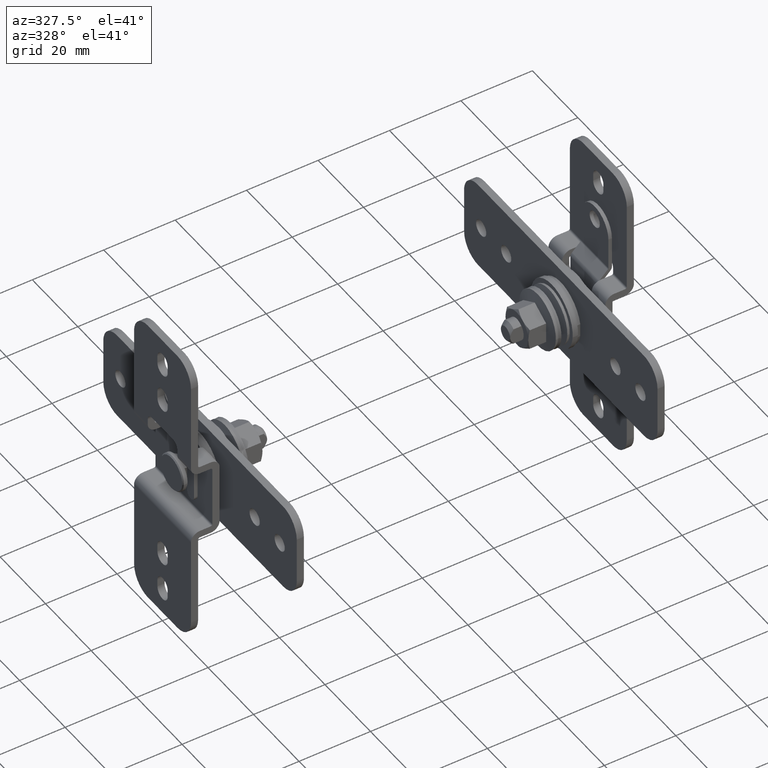
[diagram: clean part render]
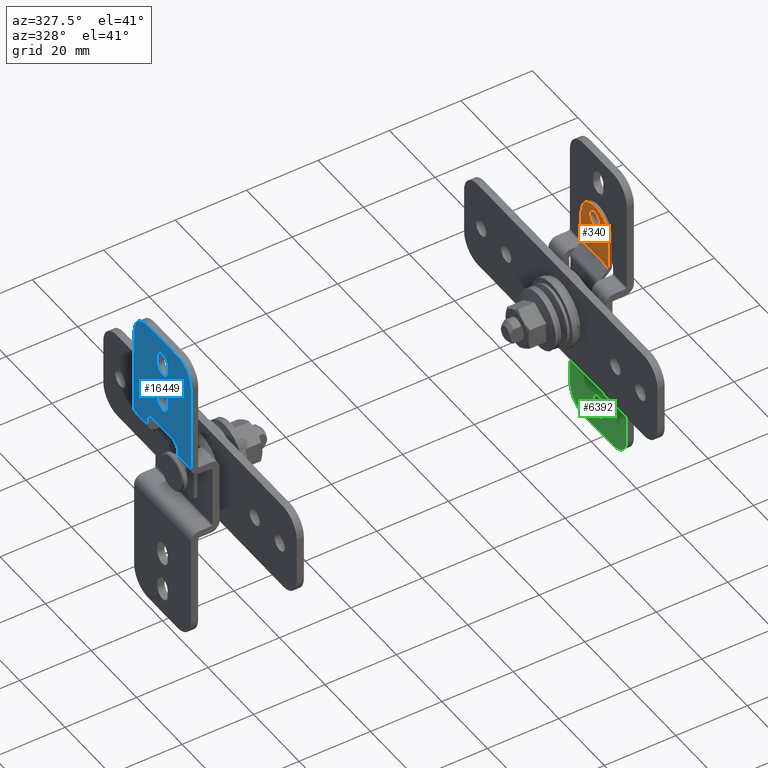
[diagram: same view with three faces highlighted in distinct colors, each labeled with its STEP entity id]
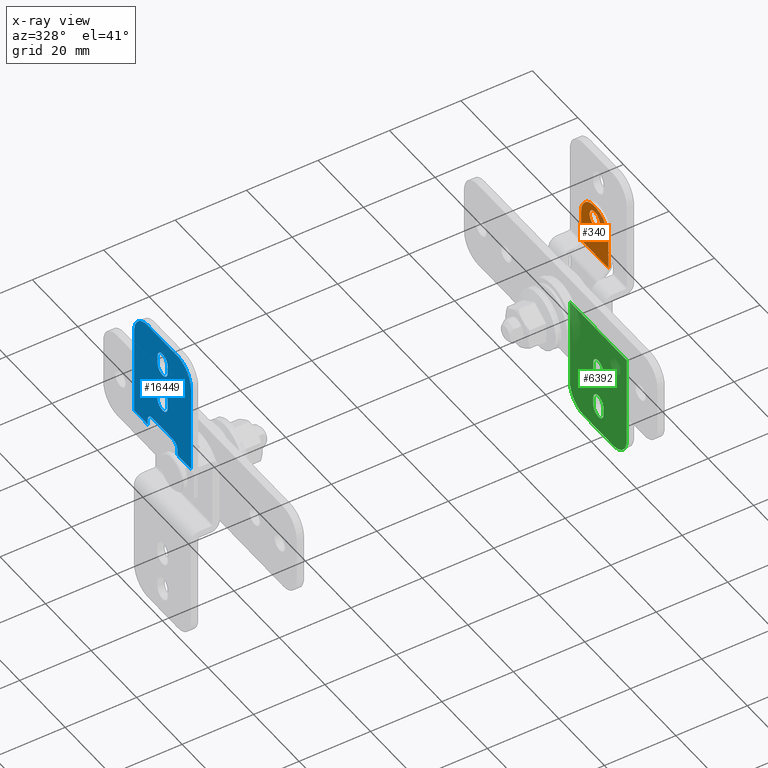
[diagram: x-ray of the same camera — body ghosted, the three highlighted faces saturated]
A machine part, auxiliary view with three faces highlighted in distinct colors.
The next image is the same camera in x-ray (body ghosted, the three faces saturated) — at least one of them is partly hidden behind the body in this view.
Their STEP definitions:

[orange] entity #340 — the highlighted face is a freeform B-spline surface patch.
#40=CARTESIAN_POINT('',(121.0,1.461258108743952,22.289086577200511));
#41=VERTEX_POINT('',#40);
#47=CARTESIAN_POINT('',(121.0,-2.250000000000000,23.999999999799702));
#48=VERTEX_POINT('',#47);
#49=CARTESIAN_POINT('',(121.0,-2.250000000000000,23.999999999799702));
#50=CARTESIAN_POINT('',(121.0,-2.250000000000000,21.749999999799694));
#51=CARTESIAN_POINT('',(121.0,0.0,21.749999999799702));
#52=CARTESIAN_POINT('',(121.000000000000030,0.830068823497885,21.749999999799698));
#53=CARTESIAN_POINT('',(120.999999999999940,1.461258108743949,22.289086577200518));
#61=(BOUNDED_CURVE()B_SPLINE_CURVE(2,(#49,#50,#51,#52,#53),.UNSPECIFIED.,.F.,.U.)B_SPLINE_CURVE_WITH_KNOTS((3,2,3),(0.500000000000000,0.750000000000000,0.863143161349466),.UNSPECIFIED.)CURVE()GEOMETRIC_REPRESENTATION_ITEM()RATIONAL_B_SPLINE_CURVE((1.0,0.707106781186547,1.0,0.867444541142501,0.854871031639133))REPRESENTATION_ITEM(''));
#62=EDGE_CURVE('',#48,#41,#61,.T.);
#64=CARTESIAN_POINT('',(121.0,-1.461258108743952,25.710913422398878));
#65=VERTEX_POINT('',#64);
#66=CARTESIAN_POINT('',(120.999999999999960,-1.461258108743954,25.710913422398878));
#67=CARTESIAN_POINT('',(120.999999999999990,-2.250000000000001,25.037264207260336));
#68=CARTESIAN_POINT('',(121.0,-2.250000000000000,23.999999999799702));
#76=(BOUNDED_CURVE()B_SPLINE_CURVE(2,(#66,#67,#68),.UNSPECIFIED.,.F.,.U.)B_SPLINE_CURVE_WITH_KNOTS((3,3),(0.363143161349466,0.500000000000000),.UNSPECIFIED.)CURVE()GEOMETRIC_REPRESENTATION_ITEM()RATIONAL_B_SPLINE_CURVE((0.854871031639133,0.839662240044047,1.0))REPRESENTATION_ITEM(''));
#77=EDGE_CURVE('',#65,#48,#76,.T.);
#153=CARTESIAN_POINT('',(121.0,2.250000000000000,23.999999999799702));
#154=VERTEX_POINT('',#153);
#155=CARTESIAN_POINT('',(121.0,2.250000000000000,23.999999999799702));
#156=CARTESIAN_POINT('',(121.0,2.250000000000000,26.249999999799705));
#157=CARTESIAN_POINT('',(121.0,0.0,26.249999999799702));
#158=CARTESIAN_POINT('',(120.999999999999990,-0.830068823497889,26.249999999799698));
#159=CARTESIAN_POINT('',(120.999999999999960,-1.461258108743954,25.710913422398878));
#167=(BOUNDED_CURVE()B_SPLINE_CURVE(2,(#155,#156,#157,#158,#159),.UNSPECIFIED.,.F.,.U.)B_SPLINE_CURVE_WITH_KNOTS((3,2,3),(0.0,0.250000000000000,0.363143161349466),.UNSPECIFIED.)CURVE()GEOMETRIC_REPRESENTATION_ITEM()RATIONAL_B_SPLINE_CURVE((1.0,0.707106781186547,1.0,0.867444541142500,0.854871031639133))REPRESENTATION_ITEM(''));
#168=EDGE_CURVE('',#154,#65,#167,.T.);
#170=CARTESIAN_POINT('',(120.999999999999940,1.461258108743949,22.289086577200518));
#171=CARTESIAN_POINT('',(121.000000000000040,2.250000000000000,22.962735792339068));
#172=CARTESIAN_POINT('',(121.0,2.250000000000000,23.999999999799702));
#180=(BOUNDED_CURVE()B_SPLINE_CURVE(2,(#170,#171,#172),.UNSPECIFIED.,.F.,.U.)B_SPLINE_CURVE_WITH_KNOTS((3,3),(0.863143161349466,1.0),.UNSPECIFIED.)CURVE()GEOMETRIC_REPRESENTATION_ITEM()RATIONAL_B_SPLINE_CURVE((0.854871031639133,0.839662240044047,1.0))REPRESENTATION_ITEM(''));
#181=EDGE_CURVE('',#41,#154,#180,.T.);
#282=CARTESIAN_POINT('',(121.0,6.599399976741672,28.743190019800640));
#283=CARTESIAN_POINT('',(121.0,6.599399976741672,12.378129924281881));
#284=CARTESIAN_POINT('',(121.0,-6.599400298606753,28.743190019800640));
#285=CARTESIAN_POINT('',(121.0,-6.599400298606753,12.378129924281881));
#286=B_SPLINE_SURFACE_WITH_KNOTS('',1,1,((#282,#284),(#283,#285)),.UNSPECIFIED.,.F.,.F.,.U.,(2,2),(2,2),(0.0,16.365060095518750),(0.0,13.198800275348431),.UNSPECIFIED.);
#287=CARTESIAN_POINT('',(121.0,-6.0,13.121320343360519));
#288=VERTEX_POINT('',#287);
#289=CARTESIAN_POINT('',(121.0,-6.0,21.999999999799702));
#290=VERTEX_POINT('',#289);
#291=CARTESIAN_POINT('',(121.0,-6.0,13.121320343360519));
#292=CARTESIAN_POINT('',(121.0,-6.0,21.999999999799702));
#293=QUASI_UNIFORM_CURVE('',1,(#291,#292),.UNSPECIFIED.,.F.,.U.);
#294=EDGE_CURVE('',#288,#290,#293,.T.);
#295=ORIENTED_EDGE('',*,*,#294,.T.);
#296=CARTESIAN_POINT('',(121.0,6.0,21.999999999799702));
#297=VERTEX_POINT('',#296);
#298=CARTESIAN_POINT('',(121.0,6.0,21.999999999799702));
#299=CARTESIAN_POINT('',(120.999999999999700,6.000049528165503,22.417218677092890));
#300=CARTESIAN_POINT('',(121.000000000000600,5.907516422989755,23.300773795668459));
#301=CARTESIAN_POINT('',(120.999999999999300,5.457595883924198,24.635505229695660));
#302=CARTESIAN_POINT('',(121.000000000001410,4.695589807879560,25.822680205854141));
#303=CARTESIAN_POINT('',(120.999999999997900,3.824846189432672,26.661743418836100));
#304=CARTESIAN_POINT('',(121.000000000001710,2.989664255869351,27.227199704446679));
#305=CARTESIAN_POINT('',(121.000000000001290,2.190713518322827,27.611105512790921));
#306=CARTESIAN_POINT('',(120.999999999997100,1.248666614170295,27.896871432335718));
#307=CARTESIAN_POINT('',(121.000000000003690,0.319828649447236,28.017217886126190));
#308=CARTESIAN_POINT('',(120.999999999997400,-0.737431978974568,27.984745673106829));
#309=CARTESIAN_POINT('',(121.000000000007500,-1.970323063909120,27.731873897103011));
#310=CARTESIAN_POINT('',(120.999999999984990,-3.154496374378397,27.162865872130329));
#311=CARTESIAN_POINT('',(121.000000000009810,-4.042983931696615,26.460384617534810));
#312=CARTESIAN_POINT('',(120.999999999996010,-4.738236048187082,25.730250005705859));
#313=CARTESIAN_POINT('',(121.000000000003790,-5.396839392012319,24.744749582995460));
#314=CARTESIAN_POINT('',(120.999999999992890,-5.887902127775767,23.423491166338351));
#315=CARTESIAN_POINT('',(121.000000000007200,-6.000076114947717,22.466322381599710));
#316=CARTESIAN_POINT('',(121.0,-6.0,21.999999999799702));
#317=B_SPLINE_CURVE_WITH_KNOTS('',3,(#298,#299,#300,#301,#302,#303,#304,#305,#306,#307,#308,#309,#310,#311,#312,#313,#314,#315,#316),.UNSPECIFIED.,.F.,.U.,(4,1,1,1,1,1,1,1,1,1,1,1,1,1,1,1,4),(0.000000353973387,1.251663416025039,2.650701336533270,4.196995058465722,5.448754008361131,6.258692607412479,7.215912720826131,8.099535299464598,9.204010754052757,10.013887354401930,11.265607409470510,12.959125900679160,13.916360006404810,14.652684728721541,15.978060201071790,17.450711285317649,18.849674194611001),.UNSPECIFIED.);
#318=EDGE_CURVE('',#297,#290,#317,.T.);
#319=ORIENTED_EDGE('',*,*,#318,.F.);
#320=CARTESIAN_POINT('',(121.0,6.0,13.121320343360519));
#321=VERTEX_POINT('',#320);
#322=CARTESIAN_POINT('',(121.0,6.0,13.121320343360519));
#323=CARTESIAN_POINT('',(121.0,6.0,21.999999999799702));
#324=QUASI_UNIFORM_CURVE('',1,(#322,#323),.UNSPECIFIED.,.F.,.U.);
#325=EDGE_CURVE('',#321,#297,#324,.T.);
#326=ORIENTED_EDGE('',*,*,#325,.F.);
#327=CARTESIAN_POINT('',(121.0,-6.0,13.121320343360519));
#328=CARTESIAN_POINT('',(121.0,6.0,13.121320343360519));
#329=QUASI_UNIFORM_CURVE('',1,(#327,#328),.UNSPECIFIED.,.F.,.U.);
#330=EDGE_CURVE('',#288,#321,#329,.T.);
#331=ORIENTED_EDGE('',*,*,#330,.F.);
#332=EDGE_LOOP('',(#295,#319,#326,#331));
#333=FACE_OUTER_BOUND('',#332,.T.);
#334=ORIENTED_EDGE('',*,*,#168,.T.);
#335=ORIENTED_EDGE('',*,*,#77,.T.);
#336=ORIENTED_EDGE('',*,*,#62,.T.);
#337=ORIENTED_EDGE('',*,*,#181,.T.);
#338=EDGE_LOOP('',(#334,#335,#336,#337));
#339=FACE_BOUND('',#338,.T.);
#340=ADVANCED_FACE('',(#333,#339),#286,.T.);

[blue] entity #16449 — the highlighted face is a freeform B-spline surface patch.
#15083=CARTESIAN_POINT('',(0.0,-6.499999999999890,11.500000000000000));
#15084=VERTEX_POINT('',#15083);
#15098=CARTESIAN_POINT('',(0.0,-6.499999999999890,13.000000000032120));
#15099=VERTEX_POINT('',#15098);
#15100=CARTESIAN_POINT('',(0.0,-6.499999999999890,11.500000000000000));
#15101=CARTESIAN_POINT('',(0.0,-6.499999999999890,13.000000000032120));
#15102=QUASI_UNIFORM_CURVE('',1,(#15100,#15101),.UNSPECIFIED.,.F.,.U.);
#15103=EDGE_CURVE('',#15084,#15099,#15102,.T.);
#15441=CARTESIAN_POINT('',(0.0,6.500000000000000,11.500000000000000));
#15442=VERTEX_POINT('',#15441);
#15491=CARTESIAN_POINT('',(0.0,6.500000000000000,13.000000000032120));
#15492=VERTEX_POINT('',#15491);
#15498=CARTESIAN_POINT('',(0.0,6.500000000000000,13.000000000032120));
#15499=CARTESIAN_POINT('',(0.0,6.500000000000000,11.500000000000000));
#15500=QUASI_UNIFORM_CURVE('',1,(#15498,#15499),.UNSPECIFIED.,.F.,.U.);
#15501=EDGE_CURVE('',#15492,#15442,#15500,.T.);
#15521=CARTESIAN_POINT('',(0.0,4.500000000000000,15.000000000032101));
#15522=VERTEX_POINT('',#15521);
#15528=CARTESIAN_POINT('',(0.0,4.500000000000000,15.000000000032120));
#15529=CARTESIAN_POINT('',(0.0,6.500000000000001,15.000000000032125));
#15530=CARTESIAN_POINT('',(0.0,6.500000000000000,13.000000000032120));
#15538=(BOUNDED_CURVE()B_SPLINE_CURVE(2,(#15528,#15529,#15530),.UNSPECIFIED.,.F.,.U.)CURVE()GEOMETRIC_REPRESENTATION_ITEM()QUASI_UNIFORM_CURVE()RATIONAL_B_SPLINE_CURVE((1.0,0.707106781186548,1.0))REPRESENTATION_ITEM(''));
#15539=EDGE_CURVE('',#15522,#15492,#15538,.T.);
#15551=CARTESIAN_POINT('',(0.0,-4.500000000000000,15.000000000032101));
#15552=VERTEX_POINT('',#15551);
#15558=CARTESIAN_POINT('',(0.0,-4.500000000000000,15.000000000032101));
#15559=CARTESIAN_POINT('',(0.0,4.500000000000000,15.000000000032101));
#15560=QUASI_UNIFORM_CURVE('',1,(#15558,#15559),.UNSPECIFIED.,.F.,.U.);
#15561=EDGE_CURVE('',#15552,#15522,#15560,.T.);
#15583=CARTESIAN_POINT('',(0.0,-6.499999999999890,13.000000000032120));
#15584=CARTESIAN_POINT('',(0.0,-6.500000000000001,15.000000000032125));
#15585=CARTESIAN_POINT('',(0.0,-4.500000000000000,15.000000000032120));
#15593=(BOUNDED_CURVE()B_SPLINE_CURVE(2,(#15583,#15584,#15585),.UNSPECIFIED.,.F.,.U.)CURVE()GEOMETRIC_REPRESENTATION_ITEM()QUASI_UNIFORM_CURVE()RATIONAL_B_SPLINE_CURVE((1.0,0.707106781186548,1.0))REPRESENTATION_ITEM(''));
#15594=EDGE_CURVE('',#15099,#15552,#15593,.T.);
#15618=CARTESIAN_POINT('',(0.0,2.250000000000225,34.000000000032152));
#15619=VERTEX_POINT('',#15618);
#15620=CARTESIAN_POINT('',(0.0,-2.249999999999775,34.000000000032152));
#15621=VERTEX_POINT('',#15620);
#15622=CARTESIAN_POINT('',(0.0,2.250000000000225,34.000000000032152));
#15623=CARTESIAN_POINT('',(0.0,2.250201249172595,33.742277950027727));
#15624=CARTESIAN_POINT('',(0.0,2.179615655347027,33.337453540378917));
#15625=CARTESIAN_POINT('',(0.0,1.934426452379791,32.819122825959283));
#15626=CARTESIAN_POINT('',(0.0,1.598076272370151,32.376821135842313));
#15627=CARTESIAN_POINT('',(0.0,1.063951608931053,31.970341788128231));
#15628=CARTESIAN_POINT('',(0.0,0.443138232939638,31.765360209855992));
#15629=CARTESIAN_POINT('',(0.0,-0.222001303106669,31.732634781830338));
#15630=CARTESIAN_POINT('',(0.0,-0.823435210446035,31.867687119299141));
#15631=CARTESIAN_POINT('',(0.0,-1.353024891780116,32.176507051900408));
#15632=CARTESIAN_POINT('',(0.0,-1.714716221483909,32.520897165416343));
#15633=CARTESIAN_POINT('',(0.0,-1.959671585158883,32.868733162939229));
#15634=CARTESIAN_POINT('',(0.0,-2.182818737071409,33.355859384735162));
#15635=CARTESIAN_POINT('',(0.0,-2.250205188413072,33.742272222281677));
#15636=CARTESIAN_POINT('',(0.0,-2.249999999999775,34.000000000032152));
#15637=B_SPLINE_CURVE_WITH_KNOTS('',3,(#15622,#15623,#15624,#15625,#15626,#15627,#15628,#15629,#15630,#15631,#15632,#15633,#15634,#15635,#15636),.UNSPECIFIED.,.F.,.U.,(4,1,1,1,1,1,1,1,1,1,1,1,4),(0.000000196257509,0.773093832299082,1.214926874622381,1.711966043698562,2.429920861294480,3.203102362542697,3.644792945760273,4.417969645474660,5.025449052653993,5.467256219438712,5.909071856491536,6.295655813486937,7.068760850378442),.UNSPECIFIED.);
#15638=EDGE_CURVE('',#15619,#15621,#15637,.T.);
#15659=CARTESIAN_POINT('',(0.0,-2.249999999999775,36.000000000032102));
#15660=VERTEX_POINT('',#15659);
#15661=CARTESIAN_POINT('',(0.0,-2.249999999999775,36.000000000032102));
#15662=CARTESIAN_POINT('',(0.0,-2.249999999999775,34.000000000032152));
#15663=QUASI_UNIFORM_CURVE('',1,(#15661,#15662),.UNSPECIFIED.,.F.,.U.);
#15664=EDGE_CURVE('',#15660,#15621,#15663,.T.);
#15694=CARTESIAN_POINT('',(0.0,2.250000000000230,36.000000000032102));
#15695=VERTEX_POINT('',#15694);
#15696=CARTESIAN_POINT('',(0.0,-2.249999999999775,36.000000000032102));
#15697=CARTESIAN_POINT('',(0.0,-2.250105537889713,36.220907910101623));
#15698=CARTESIAN_POINT('',(0.0,-2.195318656615053,36.588982819294174));
#15699=CARTESIAN_POINT('',(0.0,-1.990038234469867,37.084552996134008));
#15700=CARTESIAN_POINT('',(0.0,-1.675800648156294,37.542791896722981));
#15701=CARTESIAN_POINT('',(0.0,-1.190782846251970,37.950960064872781));
#15702=CARTESIAN_POINT('',(0.0,-0.623402447596219,38.185821098380337));
#15703=CARTESIAN_POINT('',(0.0,-0.001306743615624,38.278172591125369));
#15704=CARTESIAN_POINT('',(0.0,0.554820794107030,38.209651146353430));
#15705=CARTESIAN_POINT('',(0.0,1.050361562170682,38.004169714939501));
#15706=CARTESIAN_POINT('',(0.0,1.406576266816379,37.772458063083512));
#15707=CARTESIAN_POINT('',(0.0,1.754953749197645,37.440874891945711));
#15708=CARTESIAN_POINT('',(0.0,2.028439355537607,37.020440772725202));
#15709=CARTESIAN_POINT('',(0.0,2.209110016015536,36.515373582413133));
#15710=CARTESIAN_POINT('',(0.0,2.250042559274612,36.184064613281961));
#15711=CARTESIAN_POINT('',(0.0,2.250000000000230,36.000000000032102));
#15712=B_SPLINE_CURVE_WITH_KNOTS('',3,(#15696,#15697,#15698,#15699,#15700,#15701,#15702,#15703,#15704,#15705,#15706,#15707,#15708,#15709,#15710,#15711),.UNSPECIFIED.,.F.,.U.,(4,1,1,1,1,1,1,1,1,1,1,1,1,4),(0.000000196250113,0.662697180073150,1.104458431367720,1.601516846082784,2.319470932891838,2.982171445035571,3.423961384253977,4.197024913644366,4.638842249682501,5.025449052653081,5.467256219438284,6.074745185794611,6.516561075902753,7.068760850378440),.UNSPECIFIED.);
#15713=EDGE_CURVE('',#15660,#15695,#15712,.T.);
#15730=CARTESIAN_POINT('',(0.0,2.250000000000225,34.000000000032152));
#15731=CARTESIAN_POINT('',(0.0,2.250000000000230,36.000000000032102));
#15732=QUASI_UNIFORM_CURVE('',1,(#15730,#15731),.UNSPECIFIED.,.F.,.U.);
#15733=EDGE_CURVE('',#15619,#15695,#15732,.T.);
#15746=CARTESIAN_POINT('',(0.0,2.250000000000195,25.000000000032099));
#15747=VERTEX_POINT('',#15746);
#15748=CARTESIAN_POINT('',(0.0,2.250000000000230,23.000000000032099));
#15749=VERTEX_POINT('',#15748);
#15750=CARTESIAN_POINT('',(0.0,2.250000000000195,25.000000000032099));
#15751=CARTESIAN_POINT('',(0.0,2.250000000000230,23.000000000032099));
#15752=QUASI_UNIFORM_CURVE('',1,(#15750,#15751),.UNSPECIFIED.,.F.,.U.);
#15753=EDGE_CURVE('',#15747,#15749,#15752,.T.);
#15787=CARTESIAN_POINT('',(0.0,-2.249999999999775,25.000000000032099));
#15788=VERTEX_POINT('',#15787);
#15789=CARTESIAN_POINT('',(0.0,-2.249999999999775,25.000000000032099));
#15790=CARTESIAN_POINT('',(0.0,-2.250090358009942,25.220904547555708));
#15791=CARTESIAN_POINT('',(0.0,-2.195332552790886,25.588986163018131));
#15792=CARTESIAN_POINT('',(0.0,-1.990038824007398,26.084553812634230));
#15793=CARTESIAN_POINT('',(0.0,-1.675794153791204,26.542796665879369));
#15794=CARTESIAN_POINT('',(0.0,-1.190780545944908,26.950936907625831));
#15795=CARTESIAN_POINT('',(0.0,-0.623409244519880,27.185845510645962));
#15796=CARTESIAN_POINT('',(0.0,-0.001314452971668,27.278173871080739));
#15797=CARTESIAN_POINT('',(0.0,0.629019409180237,27.200504600211620));
#15798=CARTESIAN_POINT('',(0.0,1.217715878598963,26.921891202095789));
#15799=CARTESIAN_POINT('',(0.0,1.699629387870685,26.516483040652538));
#15800=CARTESIAN_POINT('',(0.0,2.016033492316923,26.055316487939638));
#15801=CARTESIAN_POINT('',(0.0,2.209101063139215,25.515367079967849));
#15802=CARTESIAN_POINT('',(0.0,2.250041801286577,25.184063958519442));
#15803=CARTESIAN_POINT('',(0.0,2.250000000000195,25.000000000032099));
#15804=B_SPLINE_CURVE_WITH_KNOTS('',3,(#15789,#15790,#15791,#15792,#15793,#15794,#15795,#15796,#15797,#15798,#15799,#15800,#15801,#15802,#15803),.UNSPECIFIED.,.F.,.U.,(4,1,1,1,1,1,1,1,1,1,1,1,4),(0.000000196248396,0.662697180071523,1.104458431366226,1.601516846081355,2.319470932890483,2.982171445034456,3.423961384253028,4.197024913643686,4.859749523920302,5.356798497877365,6.074745185793978,6.516561075902452,7.068760850378428),.UNSPECIFIED.);
#15805=EDGE_CURVE('',#15788,#15747,#15804,.T.);
#15822=CARTESIAN_POINT('',(0.0,-2.249999999999775,23.000000000032099));
#15823=VERTEX_POINT('',#15822);
#15824=CARTESIAN_POINT('',(0.0,-2.249999999999775,23.000000000032099));
#15825=CARTESIAN_POINT('',(0.0,-2.249999999999775,25.000000000032099));
#15826=QUASI_UNIFORM_CURVE('',1,(#15824,#15825),.UNSPECIFIED.,.F.,.U.);
#15827=EDGE_CURVE('',#15823,#15788,#15826,.T.);
#15857=CARTESIAN_POINT('',(0.0,2.250000000000230,23.000000000032099));
#15858=CARTESIAN_POINT('',(0.0,2.250101041527036,22.779094277584850));
#15859=CARTESIAN_POINT('',(0.0,2.195317729406958,22.411019243685448));
#15860=CARTESIAN_POINT('',(0.0,1.968864914708495,21.864126895831870));
#15861=CARTESIAN_POINT('',(0.0,1.658503807800172,21.445655697219738));
#15862=CARTESIAN_POINT('',(0.0,1.258067118022618,21.117124463187238));
#15863=CARTESIAN_POINT('',(0.0,0.833934586949119,20.890384525154889));
#15864=CARTESIAN_POINT('',(0.0,0.369203224075723,20.761824325704829));
#15865=CARTESIAN_POINT('',(0.0,-0.221997046754540,20.732626358481070));
#15866=CARTESIAN_POINT('',(0.0,-0.823434729302370,20.867681462168861));
#15867=CARTESIAN_POINT('',(0.0,-1.353019479976750,21.176510140822941));
#15868=CARTESIAN_POINT('',(0.0,-1.754941069743889,21.559140593014341));
#15869=CARTESIAN_POINT('',(0.0,-2.028445200394925,21.979552837446249));
#15870=CARTESIAN_POINT('',(0.0,-2.209103275995028,22.484630182019529));
#15871=CARTESIAN_POINT('',(0.0,-2.250048560262410,22.815933184092270));
#15872=CARTESIAN_POINT('',(0.0,-2.249999999999775,23.000000000032099));
#15873=B_SPLINE_CURVE_WITH_KNOTS('',3,(#15857,#15858,#15859,#15860,#15861,#15862,#15863,#15864,#15865,#15866,#15867,#15868,#15869,#15870,#15871,#15872),.UNSPECIFIED.,.F.,.U.,(4,1,1,1,1,1,1,1,1,1,1,1,1,4),(0.000000196255243,0.662697180077455,1.104458431371659,1.767194375466827,2.208997066072138,2.650833015942851,3.203102362542397,3.644792945760012,4.417969645474452,5.025449052653657,5.467256219438315,6.074745185794265,6.516561075902505,7.068760850378439),.UNSPECIFIED.);
#15874=EDGE_CURVE('',#15749,#15823,#15873,.T.);
#15897=CARTESIAN_POINT('',(0.0,-6.499999999999730,42.500000000000000));
#15898=VERTEX_POINT('',#15897);
#15904=CARTESIAN_POINT('',(0.0,-12.499999999999760,36.500000000000000));
#15905=VERTEX_POINT('',#15904);
#15906=CARTESIAN_POINT('',(0.0,-12.499999999999771,36.500000000000000));
#15907=CARTESIAN_POINT('',(0.0,-12.499999999999771,42.500000000000000));
#15908=CARTESIAN_POINT('',(0.0,-6.499999999999770,42.499999999999993));
#15916=(BOUNDED_CURVE()B_SPLINE_CURVE(2,(#15906,#15907,#15908),.UNSPECIFIED.,.F.,.U.)CURVE()GEOMETRIC_REPRESENTATION_ITEM()QUASI_UNIFORM_CURVE()RATIONAL_B_SPLINE_CURVE((1.0,0.707106781186548,1.0))REPRESENTATION_ITEM(''));
#15917=EDGE_CURVE('',#15905,#15898,#15916,.T.);
#15942=CARTESIAN_POINT('',(0.0,12.499999999999760,36.500000000000000));
#15943=VERTEX_POINT('',#15942);
#15949=CARTESIAN_POINT('',(0.0,6.499999999999730,42.500000000000000));
#15950=VERTEX_POINT('',#15949);
#15951=CARTESIAN_POINT('',(0.0,6.499999999999730,42.499999999999993));
#15952=CARTESIAN_POINT('',(0.0,12.499999999999728,42.500000000000000));
#15953=CARTESIAN_POINT('',(0.0,12.499999999999730,36.500000000000000));
#15961=(BOUNDED_CURVE()B_SPLINE_CURVE(2,(#15951,#15952,#15953),.UNSPECIFIED.,.F.,.U.)CURVE()GEOMETRIC_REPRESENTATION_ITEM()QUASI_UNIFORM_CURVE()RATIONAL_B_SPLINE_CURVE((1.0,0.707106781186548,1.0))REPRESENTATION_ITEM(''));
#15962=EDGE_CURVE('',#15950,#15943,#15961,.T.);
#16039=CARTESIAN_POINT('',(0.0,-12.499999999999719,11.500000000000000));
#16040=VERTEX_POINT('',#16039);
#16041=CARTESIAN_POINT('',(0.0,-12.499999999999760,36.500000000000000));
#16042=CARTESIAN_POINT('',(0.0,-12.499999999999719,11.500000000000000));
#16043=QUASI_UNIFORM_CURVE('',1,(#16041,#16042),.UNSPECIFIED.,.F.,.U.);
#16044=EDGE_CURVE('',#15905,#16040,#16043,.T.);
#16202=CARTESIAN_POINT('',(0.0,12.499999999999719,11.500000000000000));
#16203=VERTEX_POINT('',#16202);
#16217=CARTESIAN_POINT('',(0.0,12.499999999999760,36.500000000000000));
#16218=CARTESIAN_POINT('',(0.0,12.499999999999719,11.500000000000000));
#16219=QUASI_UNIFORM_CURVE('',1,(#16217,#16218),.UNSPECIFIED.,.F.,.U.);
#16220=EDGE_CURVE('',#15943,#16203,#16219,.T.);
#16390=CARTESIAN_POINT('',(0.0,-6.499999999999890,11.500000000000000));
#16391=CARTESIAN_POINT('',(0.0,-12.499999999999719,11.500000000000000));
#16392=QUASI_UNIFORM_CURVE('',1,(#16390,#16391),.UNSPECIFIED.,.F.,.U.);
#16393=EDGE_CURVE('',#15084,#16040,#16392,.T.);
#16405=CARTESIAN_POINT('',(0.0,6.499999999999730,42.500000000000000));
#16406=CARTESIAN_POINT('',(0.0,-6.499999999999730,42.500000000000000));
#16407=QUASI_UNIFORM_CURVE('',1,(#16405,#16406),.UNSPECIFIED.,.F.,.U.);
#16408=EDGE_CURVE('',#15950,#15898,#16407,.T.);
#16414=CARTESIAN_POINT('',(0.0,-13.748749951544889,9.951550060084010));
#16415=CARTESIAN_POINT('',(0.0,-13.748749951544889,44.048450771400773));
#16416=CARTESIAN_POINT('',(0.0,13.748750622097139,9.951550060084010));
#16417=CARTESIAN_POINT('',(0.0,13.748750622097139,44.048450771400773));
#16418=B_SPLINE_SURFACE_WITH_KNOTS('',1,1,((#16414,#16416),(#16415,#16417)),.UNSPECIFIED.,.F.,.F.,.U.,(2,2),(2,2),(0.0,34.096900711316763),(0.0,27.497500573642021),.UNSPECIFIED.);
#16419=ORIENTED_EDGE('',*,*,#15501,.F.);
#16420=ORIENTED_EDGE('',*,*,#15539,.F.);
#16421=ORIENTED_EDGE('',*,*,#15561,.F.);
#16422=ORIENTED_EDGE('',*,*,#15594,.F.);
#16423=ORIENTED_EDGE('',*,*,#15103,.F.);
#16424=ORIENTED_EDGE('',*,*,#16393,.T.);
#16425=ORIENTED_EDGE('',*,*,#16044,.F.);
#16426=ORIENTED_EDGE('',*,*,#15917,.T.);
#16427=ORIENTED_EDGE('',*,*,#16408,.F.);
#16428=ORIENTED_EDGE('',*,*,#15962,.T.);
#16429=ORIENTED_EDGE('',*,*,#16220,.T.);
#16430=CARTESIAN_POINT('',(0.0,12.499999999999719,11.500000000000000));
#16431=CARTESIAN_POINT('',(0.0,6.500000000000000,11.500000000000000));
#16432=QUASI_UNIFORM_CURVE('',1,(#16430,#16431),.UNSPECIFIED.,.F.,.U.);
#16433=EDGE_CURVE('',#16203,#15442,#16432,.T.);
#16434=ORIENTED_EDGE('',*,*,#16433,.T.);
#16435=EDGE_LOOP('',(#16419,#16420,#16421,#16422,#16423,#16424,#16425,#16426,#16427,#16428,#16429,#16434));
#16436=FACE_OUTER_BOUND('',#16435,.T.);
#16437=ORIENTED_EDGE('',*,*,#15874,.F.);
#16438=ORIENTED_EDGE('',*,*,#15753,.F.);
#16439=ORIENTED_EDGE('',*,*,#15805,.F.);
#16440=ORIENTED_EDGE('',*,*,#15827,.F.);
#16441=EDGE_LOOP('',(#16437,#16438,#16439,#16440));
#16442=FACE_BOUND('',#16441,.T.);
#16443=ORIENTED_EDGE('',*,*,#15638,.F.);
#16444=ORIENTED_EDGE('',*,*,#15733,.T.);
#16445=ORIENTED_EDGE('',*,*,#15713,.F.);
#16446=ORIENTED_EDGE('',*,*,#15664,.T.);
#16447=EDGE_LOOP('',(#16443,#16444,#16445,#16446));
#16448=FACE_BOUND('',#16447,.T.);
#16449=ADVANCED_FACE('',(#16436,#16442,#16448),#16418,.T.);

[green] entity #6392 — the highlighted face is a freeform B-spline surface patch.
#5526=CARTESIAN_POINT('',(122.0,2.250000000000230,-24.999999999967901));
#5527=VERTEX_POINT('',#5526);
#5533=CARTESIAN_POINT('',(122.0,-2.249999999999775,-24.999999999967901));
#5534=VERTEX_POINT('',#5533);
#5535=CARTESIAN_POINT('',(122.0,2.250000000000230,-24.999999999967901));
#5536=CARTESIAN_POINT('',(122.0,2.250040508241875,-25.184059196476291));
#5537=CARTESIAN_POINT('',(121.999999999999900,2.209110878711709,-25.515377053799892));
#5538=CARTESIAN_POINT('',(122.000000000000100,2.028444950477849,-26.020449530194441));
#5539=CARTESIAN_POINT('',(121.999999999999900,1.744789128710179,-26.456431425340298));
#5540=CARTESIAN_POINT('',(122.000000000000200,1.283475350529244,-26.885157550964351));
#5541=CARTESIAN_POINT('',(122.000000000000400,0.732857141091054,-27.162219425022489));
#5542=CARTESIAN_POINT('',(121.999999999999200,0.038408766484068,-27.282776259577449));
#5543=CARTESIAN_POINT('',(122.000000000002000,-0.629010434216257,-27.200481832917230));
#5544=CARTESIAN_POINT('',(121.999999999997200,-1.251392967439055,-26.906006931403191));
#5545=CARTESIAN_POINT('',(122.000000000000900,-1.752420317336686,-26.463004545172002));
#5546=CARTESIAN_POINT('',(121.999999999999300,-2.143695756658120,-25.828174323095450));
#5547=CARTESIAN_POINT('',(122.000000000000300,-2.250282888466114,-25.294532964353330));
#5548=CARTESIAN_POINT('',(122.0,-2.249999999999775,-24.999999999967901));
#5549=B_SPLINE_CURVE_WITH_KNOTS('',3,(#5535,#5536,#5537,#5538,#5539,#5540,#5541,#5542,#5543,#5544,#5545,#5546,#5547,#5548),.UNSPECIFIED.,.F.,.U.,(4,1,1,1,1,1,1,1,1,1,1,4),(0.000000196250488,0.552187582096847,0.994035504974757,1.601516846082776,2.098559095873056,2.871706931909267,3.423961384253810,4.197024913644165,4.859749523920543,5.467256219437751,6.185215054327749,7.068760850378434),.UNSPECIFIED.);
#5550=EDGE_CURVE('',#5527,#5534,#5549,.T.);
#5573=CARTESIAN_POINT('',(122.0,-2.249999999999775,-22.999999999967901));
#5574=VERTEX_POINT('',#5573);
#5575=CARTESIAN_POINT('',(122.0,-2.249999999999775,-22.999999999967901));
#5576=CARTESIAN_POINT('',(122.0,-2.249999999999775,-24.999999999967901));
#5577=QUASI_UNIFORM_CURVE('',1,(#5575,#5576),.UNSPECIFIED.,.F.,.U.);
#5578=EDGE_CURVE('',#5574,#5534,#5577,.T.);
#5627=CARTESIAN_POINT('',(122.0,2.250000000000230,-22.999999999967901));
#5628=VERTEX_POINT('',#5627);
#5629=CARTESIAN_POINT('',(122.0,-2.249999999999775,-22.999999999967901));
#5630=CARTESIAN_POINT('',(121.999999999999800,-2.250088340124372,-22.779099718018159));
#5631=CARTESIAN_POINT('',(122.000000000000600,-2.181713540839705,-22.318943825175140));
#5632=CARTESIAN_POINT('',(121.999999999999500,-1.903786230643585,-21.749288274980341));
#5633=CARTESIAN_POINT('',(122.000000000000400,-1.535586432871804,-21.333129830180550));
#5634=CARTESIAN_POINT('',(121.999999999999900,-1.134462767939405,-21.035620553830970));
#5635=CARTESIAN_POINT('',(122.000000000000100,-0.591919597494425,-20.794976148274110));
#5636=CARTESIAN_POINT('',(121.999999999999600,0.001300885131933,-20.721785600552341));
#5637=CARTESIAN_POINT('',(122.000000000001610,0.660054347700622,-20.819570930574312));
#5638=CARTESIAN_POINT('',(121.999999999996800,1.155275769727091,-21.038988379833320));
#5639=CARTESIAN_POINT('',(122.000000000002100,1.573532822273207,-21.373968943713301));
#5640=CARTESIAN_POINT('',(121.999999999999400,1.863513004597365,-21.710094250725611));
#5641=CARTESIAN_POINT('',(121.999999999997900,2.158325283042089,-22.245506722933161));
#5642=CARTESIAN_POINT('',(122.000000000004410,2.250291615421828,-22.705437667552079));
#5643=CARTESIAN_POINT('',(122.0,2.250000000000230,-22.999999999967901));
#5644=B_SPLINE_CURVE_WITH_KNOTS('',3,(#5629,#5630,#5631,#5632,#5633,#5634,#5635,#5636,#5637,#5638,#5639,#5640,#5641,#5642,#5643),.UNSPECIFIED.,.F.,.U.,(4,1,1,1,1,1,1,1,1,1,1,1,4),(0.000000196249728,0.662697180072599,1.380600253156628,1.877644395309764,2.319470932891060,2.871706931908813,3.644792945757435,4.086618096975423,4.859749523920235,5.246346393027379,5.688152584414910,6.185215054327592,7.068760850378453),.UNSPECIFIED.);
#5645=EDGE_CURVE('',#5574,#5628,#5644,.T.);
#5666=CARTESIAN_POINT('',(122.0,2.250000000000230,-24.999999999967901));
#5667=CARTESIAN_POINT('',(122.0,2.250000000000230,-22.999999999967901));
#5668=QUASI_UNIFORM_CURVE('',1,(#5666,#5667),.UNSPECIFIED.,.F.,.U.);
#5669=EDGE_CURVE('',#5527,#5628,#5668,.T.);
#5715=CARTESIAN_POINT('',(122.0,2.250000000000230,-35.999999999967912));
#5716=VERTEX_POINT('',#5715);
#5722=CARTESIAN_POINT('',(122.0,-2.249999999999775,-35.999999999967912));
#5723=VERTEX_POINT('',#5722);
#5724=CARTESIAN_POINT('',(122.0,2.250000000000230,-35.999999999967912));
#5725=CARTESIAN_POINT('',(122.0,2.250105480864444,-36.220907512748767));
#5726=CARTESIAN_POINT('',(122.000000000000200,2.195307389421607,-36.588975854060259));
#5727=CARTESIAN_POINT('',(121.999999999999900,1.954754945745782,-37.170071275817882));
#5728=CARTESIAN_POINT('',(122.0,1.564060336561367,-37.670830552397540));
#5729=CARTESIAN_POINT('',(122.000000000000200,1.037869536185515,-38.022207113358242));
#5730=CARTESIAN_POINT('',(122.0,0.445747150595681,-38.234141253605053));
#5731=CARTESIAN_POINT('',(121.999999999999700,-0.187640227815873,-38.280938223688452));
#5732=CARTESIAN_POINT('',(122.000000000000500,-0.801324135994759,-38.127060218664518));
#5733=CARTESIAN_POINT('',(121.999999999998590,-1.274405947946530,-37.874155446625217));
#5734=CARTESIAN_POINT('',(122.000000000000200,-1.600333983427275,-37.599905021647402));
#5735=CARTESIAN_POINT('',(121.999999999999600,-1.881363785030505,-37.257445226272878));
#5736=CARTESIAN_POINT('',(122.000000000000300,-2.158336569352112,-36.754501494067682));
#5737=CARTESIAN_POINT('',(121.999999999999900,-2.250287374980765,-36.294558217876947));
#5738=CARTESIAN_POINT('',(122.0,-2.249999999999775,-35.999999999967912));
#5739=B_SPLINE_CURVE_WITH_KNOTS('',3,(#5724,#5725,#5726,#5727,#5728,#5729,#5730,#5731,#5732,#5733,#5734,#5735,#5736,#5737,#5738),.UNSPECIFIED.,.F.,.U.,(4,1,1,1,1,1,1,1,1,1,1,1,4),(0.000000196257570,0.662697180079624,1.104458431373745,1.877644395315365,2.540348542938272,2.982171445038976,3.755214905552962,4.417969645474773,4.859749523921957,5.356798497878339,5.688152584415660,6.185215054328104,7.068760850378433),.UNSPECIFIED.);
#5740=EDGE_CURVE('',#5716,#5723,#5739,.T.);
#5763=CARTESIAN_POINT('',(122.0,-2.249999999999775,-33.999999999967912));
#5764=VERTEX_POINT('',#5763);
#5765=CARTESIAN_POINT('',(122.0,-2.249999999999775,-33.999999999967912));
#5766=CARTESIAN_POINT('',(122.0,-2.249999999999775,-35.999999999967912));
#5767=QUASI_UNIFORM_CURVE('',1,(#5765,#5766),.UNSPECIFIED.,.F.,.U.);
#5768=EDGE_CURVE('',#5764,#5723,#5767,.T.);
#5818=CARTESIAN_POINT('',(122.0,2.250000000000230,-33.999999999967912));
#5819=VERTEX_POINT('',#5818);
#5820=CARTESIAN_POINT('',(122.0,-2.249999999999775,-33.999999999967912));
#5821=CARTESIAN_POINT('',(122.000000000000200,-2.250105461089590,-33.779092032990029));
#5822=CARTESIAN_POINT('',(121.999999999999800,-2.195319372441547,-33.411016496266427));
#5823=CARTESIAN_POINT('',(122.000000000000100,-1.990050585153282,-32.915435974968759));
#5824=CARTESIAN_POINT('',(121.999999999999800,-1.717645842379454,-32.518356722405322));
#5825=CARTESIAN_POINT('',(122.0,-1.364816426206368,-32.190653150395271));
#5826=CARTESIAN_POINT('',(122.0,-0.873036030270782,-31.895686547188600));
#5827=CARTESIAN_POINT('',(121.999999999999900,-0.260936229799946,-31.726335435210430));
#5828=CARTESIAN_POINT('',(122.000000000000200,0.445349112061071,-31.761051963471552));
#5829=CARTESIAN_POINT('',(121.999999999999500,0.988444969157204,-31.955452128897349));
#5830=CARTESIAN_POINT('',(122.000000000000990,1.406581216848890,-32.227544492133482));
#5831=CARTESIAN_POINT('',(121.999999999999400,1.714718015627494,-32.520892795433888));
#5832=CARTESIAN_POINT('',(122.000000000000200,1.959675282818344,-32.868731450717803));
#5833=CARTESIAN_POINT('',(121.999999999999900,2.182814527939250,-33.355861869159767));
#5834=CARTESIAN_POINT('',(122.0,2.250207978246226,-33.742270827519327));
#5835=CARTESIAN_POINT('',(122.0,2.250000000000230,-33.999999999967912));
#5836=B_SPLINE_CURVE_WITH_KNOTS('',3,(#5820,#5821,#5822,#5823,#5824,#5825,#5826,#5827,#5828,#5829,#5830,#5831,#5832,#5833,#5834,#5835),.UNSPECIFIED.,.F.,.U.,(4,1,1,1,1,1,1,1,1,1,1,1,1,4),(0.000000196260515,0.662697180081893,1.104458431375454,1.601516846089600,2.098559095879257,2.540348542939666,3.313537489161228,3.976131615737712,4.638842249684325,5.025449052654200,5.467256219438728,5.909071856491551,6.295655813486841,7.068760850378443),.UNSPECIFIED.);
#5837=EDGE_CURVE('',#5764,#5819,#5836,.T.);
#5858=CARTESIAN_POINT('',(122.0,2.250000000000230,-35.999999999967912));
#5859=CARTESIAN_POINT('',(122.0,2.250000000000230,-33.999999999967912));
#5860=QUASI_UNIFORM_CURVE('',1,(#5858,#5859),.UNSPECIFIED.,.F.,.U.);
#5861=EDGE_CURVE('',#5716,#5819,#5860,.T.);
#6256=CARTESIAN_POINT('',(122.0,-12.499999999999719,-11.500000000000000));
#6257=VERTEX_POINT('',#6256);
#6272=CARTESIAN_POINT('',(122.0,12.499999999999719,-11.500000000000000));
#6273=VERTEX_POINT('',#6272);
#6287=CARTESIAN_POINT('',(122.0,12.499999999999719,-11.500000000000000));
#6288=CARTESIAN_POINT('',(122.0,-12.499999999999719,-11.500000000000000));
#6289=QUASI_UNIFORM_CURVE('',1,(#6287,#6288),.UNSPECIFIED.,.F.,.U.);
#6290=EDGE_CURVE('',#6273,#6257,#6289,.T.);
#6309=CARTESIAN_POINT('',(122.0,-6.499999999999730,-42.500000000000000));
#6310=VERTEX_POINT('',#6309);
#6316=CARTESIAN_POINT('',(122.0,6.499999999999730,-42.500000000000000));
#6317=VERTEX_POINT('',#6316);
#6318=CARTESIAN_POINT('',(122.0,6.499999999999730,-42.500000000000000));
#6319=CARTESIAN_POINT('',(122.0,-6.499999999999730,-42.500000000000000));
#6320=QUASI_UNIFORM_CURVE('',1,(#6318,#6319),.UNSPECIFIED.,.F.,.U.);
#6321=EDGE_CURVE('',#6317,#6310,#6320,.T.);
#6331=CARTESIAN_POINT('',(122.0,13.748749951544889,-9.951550060084010));
#6332=CARTESIAN_POINT('',(122.0,13.748749951544889,-44.048450771400773));
#6333=CARTESIAN_POINT('',(122.0,-13.748750622097139,-9.951550060084010));
#6334=CARTESIAN_POINT('',(122.0,-13.748750622097139,-44.048450771400773));
#6335=B_SPLINE_SURFACE_WITH_KNOTS('',1,1,((#6331,#6333),(#6332,#6334)),.UNSPECIFIED.,.F.,.F.,.U.,(2,2),(2,2),(0.0,34.096900711316763),(0.0,27.497500573642021),.UNSPECIFIED.);
#6336=ORIENTED_EDGE('',*,*,#6321,.T.);
#6337=CARTESIAN_POINT('',(122.0,-12.499999999999760,-36.500000000000000));
#6338=VERTEX_POINT('',#6337);
#6339=CARTESIAN_POINT('',(122.0,-12.499999999999771,-36.500000000000000));
#6340=CARTESIAN_POINT('',(121.999999999999990,-12.499999999999771,-42.500000000000000));
#6341=CARTESIAN_POINT('',(122.0,-6.499999999999770,-42.499999999999993));
#6349=(BOUNDED_CURVE()B_SPLINE_CURVE(2,(#6339,#6340,#6341),.UNSPECIFIED.,.F.,.U.)CURVE()GEOMETRIC_REPRESENTATION_ITEM()QUASI_UNIFORM_CURVE()RATIONAL_B_SPLINE_CURVE((1.0,0.707106781186548,1.0))REPRESENTATION_ITEM(''));
#6350=EDGE_CURVE('',#6338,#6310,#6349,.T.);
#6351=ORIENTED_EDGE('',*,*,#6350,.F.);
#6352=CARTESIAN_POINT('',(122.0,-12.499999999999760,-36.500000000000000));
#6353=CARTESIAN_POINT('',(122.0,-12.499999999999719,-11.500000000000000));
#6354=QUASI_UNIFORM_CURVE('',1,(#6352,#6353),.UNSPECIFIED.,.F.,.U.);
#6355=EDGE_CURVE('',#6338,#6257,#6354,.T.);
#6356=ORIENTED_EDGE('',*,*,#6355,.T.);
#6357=ORIENTED_EDGE('',*,*,#6290,.F.);
#6358=CARTESIAN_POINT('',(122.0,12.499999999999760,-36.500000000000000));
#6359=VERTEX_POINT('',#6358);
#6360=CARTESIAN_POINT('',(122.0,12.499999999999760,-36.500000000000000));
#6361=CARTESIAN_POINT('',(122.0,12.499999999999719,-11.500000000000000));
#6362=QUASI_UNIFORM_CURVE('',1,(#6360,#6361),.UNSPECIFIED.,.F.,.U.);
#6363=EDGE_CURVE('',#6359,#6273,#6362,.T.);
#6364=ORIENTED_EDGE('',*,*,#6363,.F.);
#6365=CARTESIAN_POINT('',(122.0,6.499999999999730,-42.499999999999993));
#6366=CARTESIAN_POINT('',(121.999999999999990,12.499999999999728,-42.500000000000000));
#6367=CARTESIAN_POINT('',(122.0,12.499999999999730,-36.500000000000000));
#6375=(BOUNDED_CURVE()B_SPLINE_CURVE(2,(#6365,#6366,#6367),.UNSPECIFIED.,.F.,.U.)CURVE()GEOMETRIC_REPRESENTATION_ITEM()QUASI_UNIFORM_CURVE()RATIONAL_B_SPLINE_CURVE((1.0,0.707106781186548,1.0))REPRESENTATION_ITEM(''));
#6376=EDGE_CURVE('',#6317,#6359,#6375,.T.);
#6377=ORIENTED_EDGE('',*,*,#6376,.F.);
#6378=EDGE_LOOP('',(#6336,#6351,#6356,#6357,#6364,#6377));
#6379=FACE_OUTER_BOUND('',#6378,.T.);
#6380=ORIENTED_EDGE('',*,*,#5837,.F.);
#6381=ORIENTED_EDGE('',*,*,#5768,.T.);
#6382=ORIENTED_EDGE('',*,*,#5740,.F.);
#6383=ORIENTED_EDGE('',*,*,#5861,.T.);
#6384=EDGE_LOOP('',(#6380,#6381,#6382,#6383));
#6385=FACE_BOUND('',#6384,.T.);
#6386=ORIENTED_EDGE('',*,*,#5645,.F.);
#6387=ORIENTED_EDGE('',*,*,#5578,.T.);
#6388=ORIENTED_EDGE('',*,*,#5550,.F.);
#6389=ORIENTED_EDGE('',*,*,#5669,.T.);
#6390=EDGE_LOOP('',(#6386,#6387,#6388,#6389));
#6391=FACE_BOUND('',#6390,.T.);
#6392=ADVANCED_FACE('',(#6379,#6385,#6391),#6335,.T.);